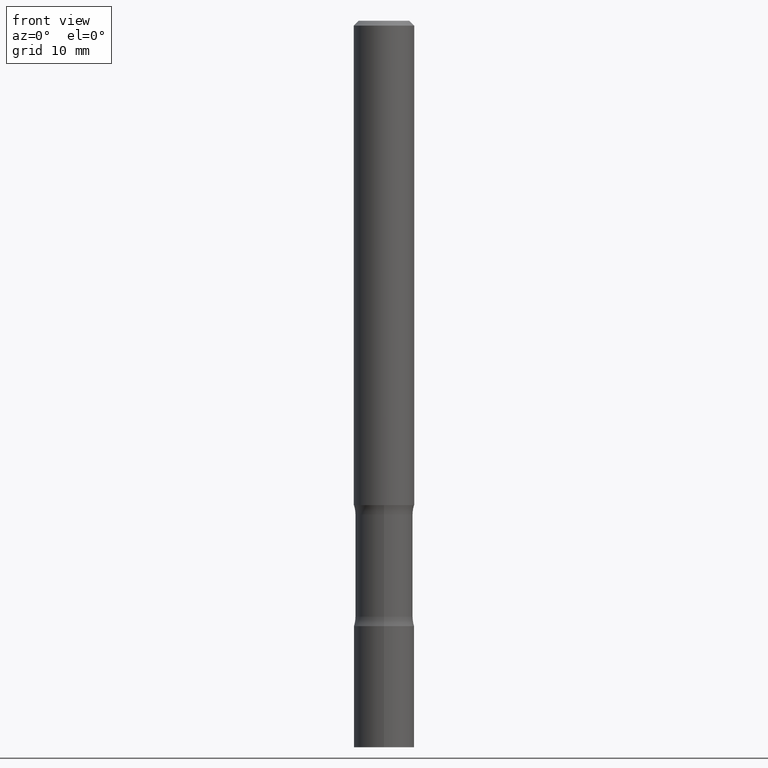
[diagram: clean part render]
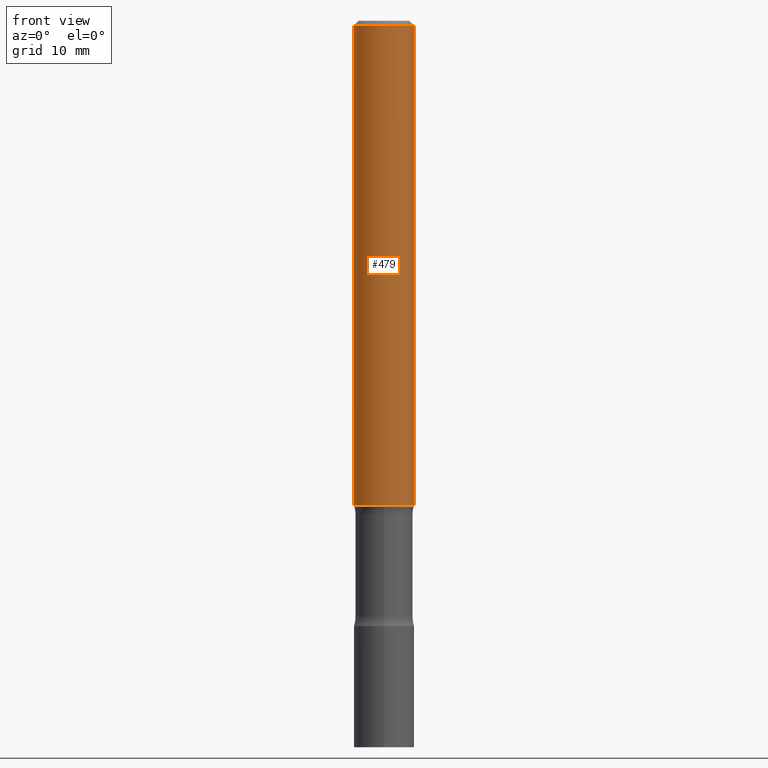
[diagram: same view with one face highlighted and labeled with its STEP entity id]
A machine part, front view. The second image highlights one B-rep face of the part: STEP entity #479.
In plain terms, the highlighted cylindrical surface (edge-blend (fillet) strip) has radius 3.175 mm, axis along (-0, 0, 1).
Its self-contained STEP definition (entity closure, byte-faithful):
#2 = CIRCLE ( 'NONE', #424, 0.1249999999999997641 ) ;
#9 = CARTESIAN_POINT ( 'NONE',  ( 0.1249999999999998751, -8.728703347107825500E-16, 6.095220969744913435E-30 ) ) ;
#10 = CARTESIAN_POINT ( 'NONE',  ( 4.890937612370274875E-29, -6.982962677686292743E-15, -2.000000000000000444 ) ) ;
#33 = ORIENTED_EDGE ( 'NONE', *, *, #118, .F. ) ;
#35 = CARTESIAN_POINT ( 'NONE',  ( 0.1250000000000000000, -7.855833012397076871E-15, -2.000000000000000444 ) ) ;
#61 = ORIENTED_EDGE ( 'NONE', *, *, #236, .T. ) ;
#77 = DIRECTION ( 'NONE',  ( 1.000000000000000000, -6.982962677686266711E-15, 0.000000000000000000 ) ) ;
#78 = LINE ( 'NONE', #9, #361 ) ;
#80 = DIRECTION ( 'NONE',  ( -2.445468806185136877E-29, 3.491481338843145188E-15, 1.000000000000000000 ) ) ;
#84 = DIRECTION ( 'NONE',  ( 1.000000000000000000, -6.982962677686267499E-15, 4.876176775795935793E-29 ) ) ;
#92 = DIRECTION ( 'NONE',  ( 1.000000000000000000, -6.982962677686270655E-15, 0.000000000000000000 ) ) ;
#106 = VERTEX_POINT ( 'NONE', #390 ) ;
#117 = EDGE_LOOP ( 'NONE', ( #312, #61, #396, #33 ) ) ;
#118 = EDGE_CURVE ( 'NONE', #106, #191, #2, .T. ) ;
#127 = CARTESIAN_POINT ( 'NONE',  ( -0.1249999999999998751, 8.881784197001243449E-16, -6.148668862818626622E-30 ) ) ;
#134 = DIRECTION ( 'NONE',  ( -2.445468806185136597E-29, 3.491481338843145583E-15, 1.000000000000000000 ) ) ;
#138 = CARTESIAN_POINT ( 'NONE',  ( 0.1249999999999997641, -9.273918764983027713E-16, -0.02000000000000000042 ) ) ;
#165 = EDGE_CURVE ( 'NONE', #304, #106, #210, .T. ) ;
#190 = CARTESIAN_POINT ( 'NONE',  ( -0.1250000000000000000, -2.638217732531449633E-15, -2.000000000000000444 ) ) ;
#191 = VERTEX_POINT ( 'NONE', #138 ) ;
#210 = LINE ( 'NONE', #127, #371 ) ;
#212 = CYLINDRICAL_SURFACE ( 'NONE', #418, 0.1249999999999998751 ) ;
#221 = DIRECTION ( 'NONE',  ( -2.445468806185136877E-29, 3.491481338843145188E-15, 1.000000000000000000 ) ) ;
#236 = EDGE_CURVE ( 'NONE', #304, #382, #301, .T. ) ;
#246 = CARTESIAN_POINT ( 'NONE',  ( 0.000000000000000000, 0.000000000000000000, 0.000000000000000000 ) ) ;
#301 = CIRCLE ( 'NONE', #317, 0.1250000000000000000 ) ;
#304 = VERTEX_POINT ( 'NONE', #190 ) ;
#312 = ORIENTED_EDGE ( 'NONE', *, *, #165, .F. ) ;
#317 = AXIS2_PLACEMENT_3D ( 'NONE', #10, #134, #92 ) ;
#353 = CARTESIAN_POINT ( 'NONE',  ( 4.890937612370273159E-31, -6.982962677686291609E-17, -0.02000000000000000042 ) ) ;
#361 = VECTOR ( 'NONE', #80, 39.37007874015748143 ) ;
#365 = DIRECTION ( 'NONE',  ( -2.445468806185136597E-29, 3.491481338843145583E-15, 1.000000000000000000 ) ) ;
#371 = VECTOR ( 'NONE', #221, 39.37007874015748143 ) ;
#382 = VERTEX_POINT ( 'NONE', #35 ) ;
#390 = CARTESIAN_POINT ( 'NONE',  ( -0.1249999999999997641, 8.030407079339186601E-16, -0.02000000000000000042 ) ) ;
#396 = ORIENTED_EDGE ( 'NONE', *, *, #465, .T. ) ;
#418 = AXIS2_PLACEMENT_3D ( 'NONE', #246, #365, #84 ) ;
#424 = AXIS2_PLACEMENT_3D ( 'NONE', #353, #431, #77 ) ;
#431 = DIRECTION ( 'NONE',  ( -2.445468806185136597E-29, 3.491481338843145583E-15, 1.000000000000000000 ) ) ;
#465 = EDGE_CURVE ( 'NONE', #382, #191, #78, .T. ) ;
#479 = ADVANCED_FACE ( 'NONE', ( #481 ), #212, .T. ) ;
#481 = FACE_OUTER_BOUND ( 'NONE', #117, .T. ) ;